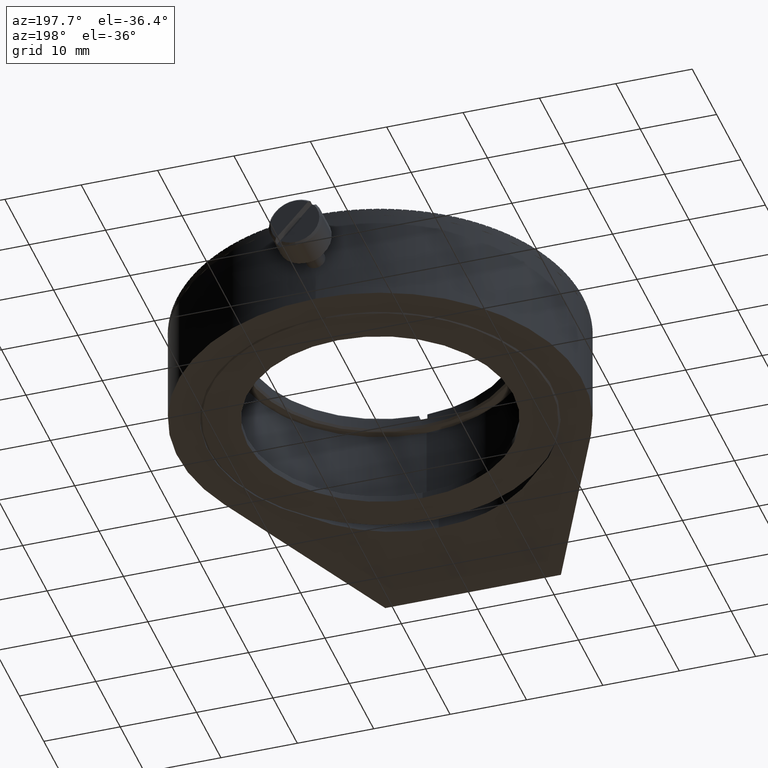
[diagram: clean part render]
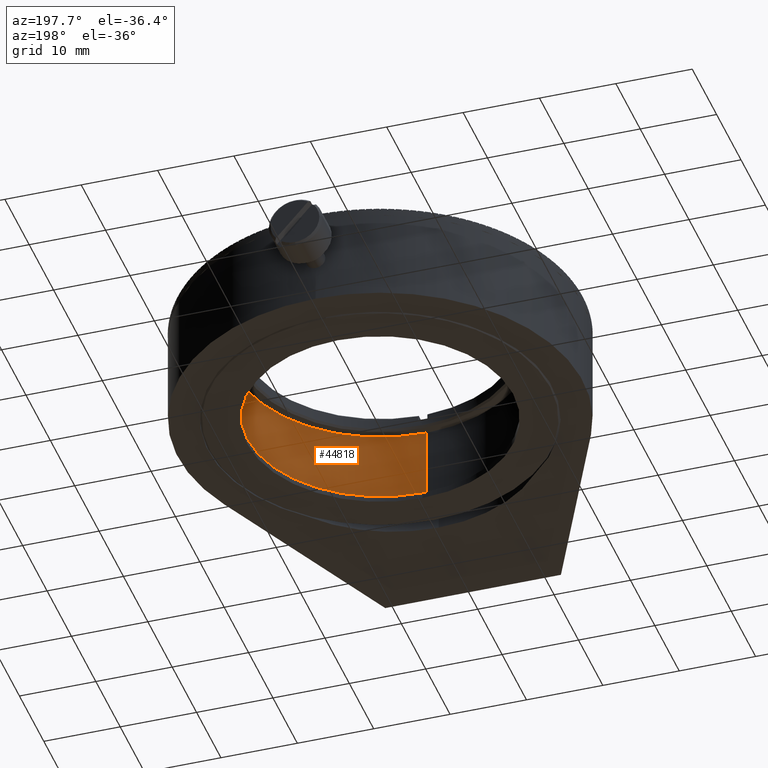
[diagram: same view with one face highlighted and labeled with its STEP entity id]
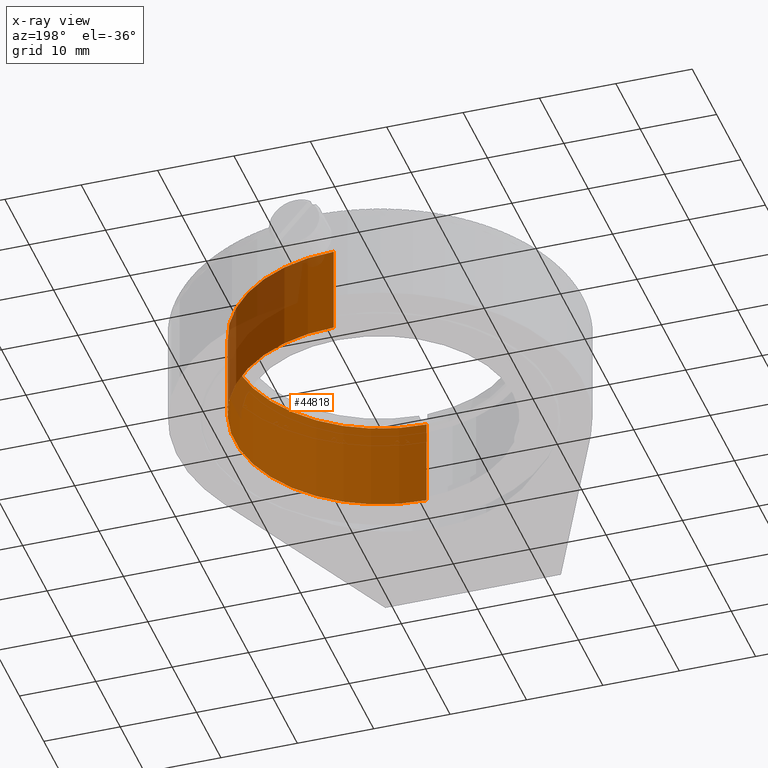
[diagram: x-ray of the same camera — body ghosted, the highlighted face saturated]
A machine part, auxiliary view. The second image highlights one B-rep face of the part: STEP entity #44818.
The next image is the same camera in x-ray: the body ghosted, the highlighted face saturated — about 16% of this face is hidden behind the body in this view.
In plain terms, the highlighted cylindrical surface (partial cylindrical patch) has radius 19.05 mm, axis along (-0, 0, 1).
Its self-contained STEP definition (entity closure, byte-faithful):
#941 = VERTEX_POINT ( 'NONE', #30101 ) ;
#1739 = AXIS2_PLACEMENT_3D ( 'NONE', #24877, #39077, #35579 ) ;
#1762 = CARTESIAN_POINT ( 'NONE',  ( 3.028128947738332978E-15, 19.05000000000000426, 12.49999999999998757 ) ) ;
#6727 = CIRCLE ( 'NONE', #1739, 19.05000000000000426 ) ;
#7138 = CYLINDRICAL_SURFACE ( 'NONE', #13229, 19.05000000000000426 ) ;
#8869 = ORIENTED_EDGE ( 'NONE', *, *, #57135, .T. ) ;
#10750 = VECTOR ( 'NONE', #62419, 1000.000000000000000 ) ;
#11231 = DIRECTION ( 'NONE',  ( -2.801265104111234548E-31, 1.224646799147355179E-16, 1.000000000000000000 ) ) ;
#11294 = VERTEX_POINT ( 'NONE', #1762 ) ;
#12181 = DIRECTION ( 'NONE',  ( 0.000000000000000000, -1.000000000000000000, 0.000000000000000000 ) ) ;
#13229 = AXIS2_PLACEMENT_3D ( 'NONE', #36148, #11231, #12181 ) ;
#13530 = CIRCLE ( 'NONE', #56848, 19.05000000000000426 ) ;
#15075 = LINE ( 'NONE', #43173, #10750 ) ;
#15976 = FACE_OUTER_BOUND ( 'NONE', #34743, .T. ) ;
#19458 = VERTEX_POINT ( 'NONE', #25660 ) ;
#21425 = EDGE_CURVE ( 'NONE', #22098, #11294, #6727, .T. ) ;
#22098 = VERTEX_POINT ( 'NONE', #41122 ) ;
#22960 = EDGE_CURVE ( 'NONE', #19458, #11294, #33617, .T. ) ;
#24877 = CARTESIAN_POINT ( 'NONE',  ( 6.951767953626228640E-16, -9.757941448684247744E-16, 12.49999999999998934 ) ) ;
#25660 = CARTESIAN_POINT ( 'NONE',  ( 3.028128947738332978E-15, 19.05000000000000071, 0.7500000000000052180 ) ) ;
#29609 = ORIENTED_EDGE ( 'NONE', *, *, #21425, .T. ) ;
#30101 = CARTESIAN_POINT ( 'NONE',  ( 6.951767953626262166E-16, -19.05000000000000782, 0.7500000000000099920 ) ) ;
#32111 = DIRECTION ( 'NONE',  ( 0.000000000000000000, -1.000000000000000000, 1.252096997096120395E-16 ) ) ;
#33617 = LINE ( 'NONE', #44012, #37772 ) ;
#34743 = EDGE_LOOP ( 'NONE', ( #42561, #60479, #8869, #29609 ) ) ;
#35579 = DIRECTION ( 'NONE',  ( -0.4742808728983839983, -0.8803735875199499850, 9.106159978880874930E-17 ) ) ;
#36148 = CARTESIAN_POINT ( 'NONE',  ( 6.951767953626415994E-16, -9.111311026312823847E-15, -53.93153672641491880 ) ) ;
#37772 = VECTOR ( 'NONE', #52864, 1000.000000000000000 ) ;
#39077 = DIRECTION ( 'NONE',  ( -2.801265104111234548E-31, 1.224646799147355179E-16, 1.000000000000000000 ) ) ;
#41122 = CARTESIAN_POINT ( 'NONE',  ( 6.951767953626246389E-16, -19.05000000000000426, 12.49999999999999112 ) ) ;
#42561 = ORIENTED_EDGE ( 'NONE', *, *, #22960, .F. ) ;
#42812 = DIRECTION ( 'NONE',  ( -2.801265104111234548E-31, 1.224646799147355179E-16, 1.000000000000000000 ) ) ;
#43173 = CARTESIAN_POINT ( 'NONE',  ( 6.951767953626415994E-16, -19.05000000000001492, -53.93153672641491880 ) ) ;
#44012 = CARTESIAN_POINT ( 'NONE',  ( 3.028128947738349939E-15, 19.04999999999999361, -53.93153672641491880 ) ) ;
#44818 = ADVANCED_FACE ( 'NONE', ( #15976 ), #7138, .F. ) ;
#51972 = CARTESIAN_POINT ( 'NONE',  ( 6.951767953626262166E-16, -2.414754133866564737E-15, 0.7500000000000075495 ) ) ;
#52504 = EDGE_CURVE ( 'NONE', #941, #19458, #13530, .T. ) ;
#52864 = DIRECTION ( 'NONE',  ( -2.801265104111234548E-31, 1.224646799147355179E-16, 1.000000000000000000 ) ) ;
#56848 = AXIS2_PLACEMENT_3D ( 'NONE', #51972, #42812, #32111 ) ;
#57135 = EDGE_CURVE ( 'NONE', #941, #22098, #15075, .T. ) ;
#60479 = ORIENTED_EDGE ( 'NONE', *, *, #52504, .F. ) ;
#62419 = DIRECTION ( 'NONE',  ( -2.801265104111234548E-31, 1.224646799147355179E-16, 1.000000000000000000 ) ) ;